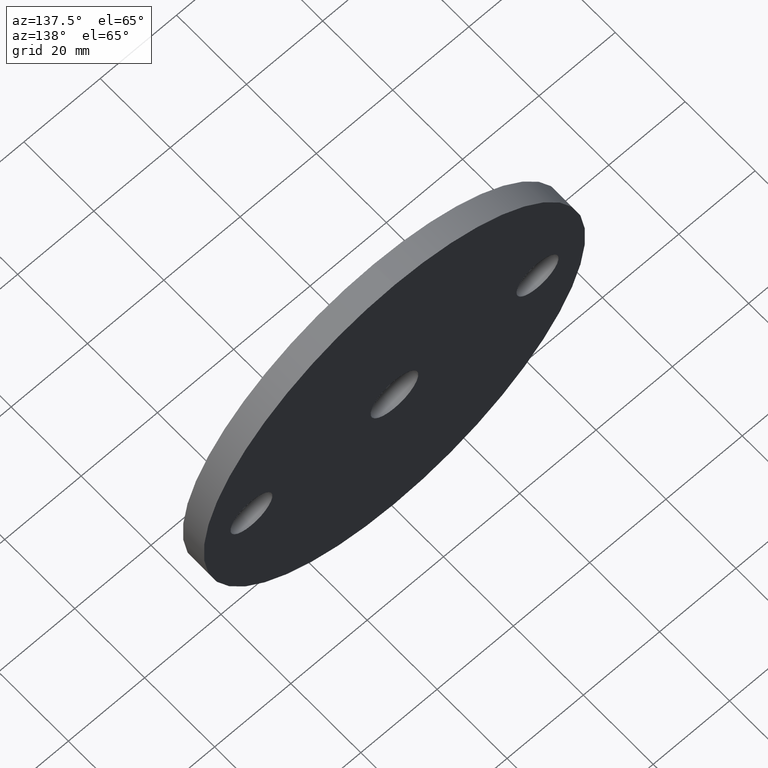
[diagram: clean part render]
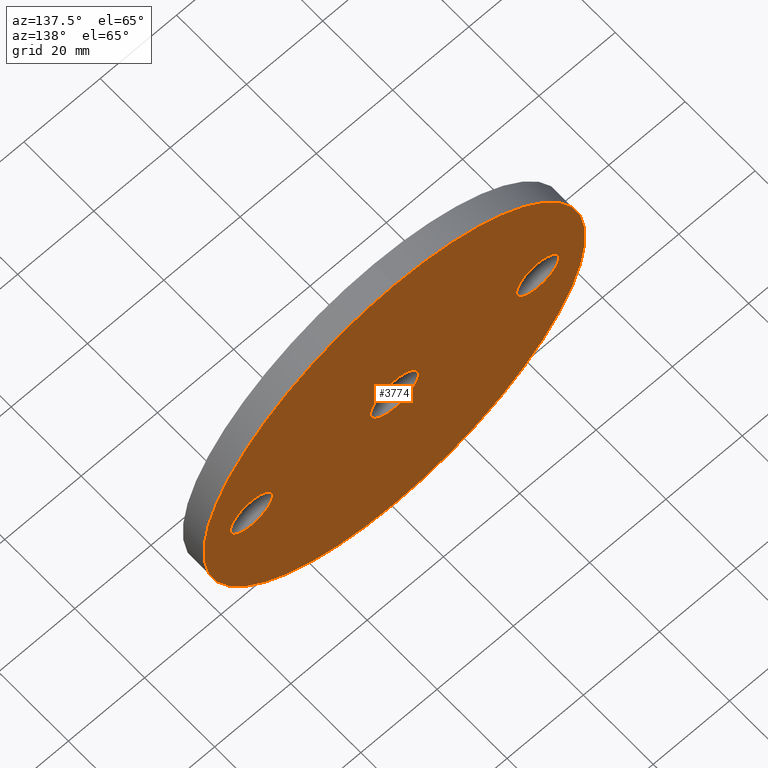
[diagram: same view with one face highlighted and labeled with its STEP entity id]
A machine part, auxiliary view. The second image highlights one B-rep face of the part: STEP entity #3774.
In plain terms, the highlighted planar face has unit normal (0, 1, 0).
Its self-contained STEP definition (entity closure, byte-faithful):
#176 = DIRECTION ( 'NONE',  ( 0.0000000000000000000, 0.0000000000000000000, 1.000000000000000000 ) ) ;
#208 = VERTEX_POINT ( 'NONE', #1717 ) ;
#419 = CARTESIAN_POINT ( 'NONE',  ( 0.0000000000000000000, 6.000000000000000000, 0.0000000000000000000 ) ) ;
#667 = AXIS2_PLACEMENT_3D ( 'NONE', #5362, #9909, #10661 ) ;
#1156 = CARTESIAN_POINT ( 'NONE',  ( -37.50000000000000000, 6.000000000000000000, 0.0000000000000000000 ) ) ;
#1271 = AXIS2_PLACEMENT_3D ( 'NONE', #1988, #10919, #6367 ) ;
#1403 = DIRECTION ( 'NONE',  ( 0.0000000000000000000, 1.000000000000000000, 0.0000000000000000000 ) ) ;
#1491 = DIRECTION ( 'NONE',  ( 0.0000000000000000000, 0.0000000000000000000, 1.000000000000000000 ) ) ;
#1552 = AXIS2_PLACEMENT_3D ( 'NONE', #6761, #1403, #6795 ) ;
#1701 = AXIS2_PLACEMENT_3D ( 'NONE', #419, #9299, #4006 ) ;
#1717 = CARTESIAN_POINT ( 'NONE',  ( 37.50000000000000000, 6.000000000000000000, 5.499999999999986700 ) ) ;
#1832 = CARTESIAN_POINT ( 'NONE',  ( 0.0000000000000000000, 6.000000000000000000, 0.0000000000000000000 ) ) ;
#1976 = CARTESIAN_POINT ( 'NONE',  ( 37.50000000000000000, 6.000000000000000000, -9.184850993605148700E-015 ) ) ;
#1988 = CARTESIAN_POINT ( 'NONE',  ( -37.50000000000000000, 6.000000000000000000, 0.0000000000000000000 ) ) ;
#2046 = DIRECTION ( 'NONE',  ( 0.0000000000000000000, 0.0000000000000000000, 1.000000000000000000 ) ) ;
#2276 = PLANE ( 'NONE',  #1701 ) ;
#2283 = FACE_BOUND ( 'NONE', #8852, .T. ) ;
#2552 = CIRCLE ( 'NONE', #1271, 5.499999999999996400 ) ;
#2638 = VERTEX_POINT ( 'NONE', #7796 ) ;
#2882 = ORIENTED_EDGE ( 'NONE', *, *, #6775, .F. ) ;
#3171 = DIRECTION ( 'NONE',  ( 0.0000000000000000000, 1.000000000000000000, 0.0000000000000000000 ) ) ;
#3245 = CARTESIAN_POINT ( 'NONE',  ( 0.0000000000000000000, 6.000000000000000000, 0.0000000000000000000 ) ) ;
#3412 = FACE_BOUND ( 'NONE', #9779, .T. ) ;
#3512 = DIRECTION ( 'NONE',  ( 0.0000000000000000000, 1.000000000000000000, 0.0000000000000000000 ) ) ;
#3520 = CIRCLE ( 'NONE', #667, 6.250000000000000000 ) ;
#3628 = VERTEX_POINT ( 'NONE', #11001 ) ;
#3774 = ADVANCED_FACE ( 'NONE', ( #3412, #7436, #2283, #11472 ), #2276, .T. ) ;
#3907 = EDGE_CURVE ( 'NONE', #208, #7978, #4784, .T. ) ;
#4006 = DIRECTION ( 'NONE',  ( 0.0000000000000000000, -0.0000000000000000000, 1.000000000000000000 ) ) ;
#4342 = AXIS2_PLACEMENT_3D ( 'NONE', #3245, #3171, #1491 ) ;
#4426 = EDGE_CURVE ( 'NONE', #3628, #8066, #6862, .T. ) ;
#4428 = DIRECTION ( 'NONE',  ( 0.0000000000000000000, 0.0000000000000000000, 1.000000000000000000 ) ) ;
#4515 = DIRECTION ( 'NONE',  ( 0.0000000000000000000, 0.0000000000000000000, 1.000000000000000000 ) ) ;
#4542 = AXIS2_PLACEMENT_3D ( 'NONE', #8778, #5263, #4428 ) ;
#4570 = EDGE_LOOP ( 'NONE', ( #8142, #5376 ) ) ;
#4725 = DIRECTION ( 'NONE',  ( 0.0000000000000000000, 1.000000000000000000, 0.0000000000000000000 ) ) ;
#4784 = CIRCLE ( 'NONE', #4542, 5.499999999999996400 ) ;
#5046 = EDGE_CURVE ( 'NONE', #8066, #3628, #6048, .T. ) ;
#5238 = VERTEX_POINT ( 'NONE', #7351 ) ;
#5263 = DIRECTION ( 'NONE',  ( 0.0000000000000000000, 1.000000000000000000, 0.0000000000000000000 ) ) ;
#5330 = ORIENTED_EDGE ( 'NONE', *, *, #10160, .F. ) ;
#5362 = CARTESIAN_POINT ( 'NONE',  ( 0.0000000000000000000, 6.000000000000000000, 0.0000000000000000000 ) ) ;
#5369 = CARTESIAN_POINT ( 'NONE',  ( 37.50000000000000000, 6.000000000000000000, -5.500000000000005300 ) ) ;
#5376 = ORIENTED_EDGE ( 'NONE', *, *, #4426, .T. ) ;
#5525 = VERTEX_POINT ( 'NONE', #8674 ) ;
#5546 = ORIENTED_EDGE ( 'NONE', *, *, #10141, .F. ) ;
#5654 = AXIS2_PLACEMENT_3D ( 'NONE', #1976, #10799, #176 ) ;
#5790 = ORIENTED_EDGE ( 'NONE', *, *, #3907, .F. ) ;
#6048 = CIRCLE ( 'NONE', #9054, 50.00000000000000000 ) ;
#6367 = DIRECTION ( 'NONE',  ( 0.0000000000000000000, 0.0000000000000000000, 1.000000000000000000 ) ) ;
#6684 = EDGE_CURVE ( 'NONE', #5525, #5238, #3520, .T. ) ;
#6761 = CARTESIAN_POINT ( 'NONE',  ( 0.0000000000000000000, 6.000000000000000000, 0.0000000000000000000 ) ) ;
#6775 = EDGE_CURVE ( 'NONE', #2638, #9582, #2552, .T. ) ;
#6795 = DIRECTION ( 'NONE',  ( 0.0000000000000000000, 0.0000000000000000000, 1.000000000000000000 ) ) ;
#6862 = CIRCLE ( 'NONE', #1552, 50.00000000000000000 ) ;
#7351 = CARTESIAN_POINT ( 'NONE',  ( 0.0000000000000000000, 6.000000000000000000, 6.250000000000000000 ) ) ;
#7430 = CARTESIAN_POINT ( 'NONE',  ( 0.0000000000000000000, 6.000000000000000000, -50.00000000000000000 ) ) ;
#7436 = FACE_BOUND ( 'NONE', #10392, .T. ) ;
#7796 = CARTESIAN_POINT ( 'NONE',  ( -37.50000000000000000, 6.000000000000000000, 5.499999999999996400 ) ) ;
#7917 = CIRCLE ( 'NONE', #5654, 5.499999999999996400 ) ;
#7978 = VERTEX_POINT ( 'NONE', #5369 ) ;
#8066 = VERTEX_POINT ( 'NONE', #7430 ) ;
#8142 = ORIENTED_EDGE ( 'NONE', *, *, #5046, .T. ) ;
#8591 = CIRCLE ( 'NONE', #4342, 6.250000000000000000 ) ;
#8674 = CARTESIAN_POINT ( 'NONE',  ( 7.654042494670957600E-016, 6.000000000000000000, -6.250000000000000000 ) ) ;
#8778 = CARTESIAN_POINT ( 'NONE',  ( 37.50000000000000000, 6.000000000000000000, -9.184850993605148700E-015 ) ) ;
#8852 = EDGE_LOOP ( 'NONE', ( #2882, #5330 ) ) ;
#9054 = AXIS2_PLACEMENT_3D ( 'NONE', #1832, #3512, #4515 ) ;
#9299 = DIRECTION ( 'NONE',  ( 0.0000000000000000000, 1.000000000000000000, 0.0000000000000000000 ) ) ;
#9582 = VERTEX_POINT ( 'NONE', #10867 ) ;
#9734 = CIRCLE ( 'NONE', #9840, 5.499999999999996400 ) ;
#9779 = EDGE_LOOP ( 'NONE', ( #9935, #10614 ) ) ;
#9840 = AXIS2_PLACEMENT_3D ( 'NONE', #1156, #4725, #2046 ) ;
#9909 = DIRECTION ( 'NONE',  ( 0.0000000000000000000, 1.000000000000000000, 0.0000000000000000000 ) ) ;
#9935 = ORIENTED_EDGE ( 'NONE', *, *, #10535, .F. ) ;
#10141 = EDGE_CURVE ( 'NONE', #7978, #208, #7917, .T. ) ;
#10160 = EDGE_CURVE ( 'NONE', #9582, #2638, #9734, .T. ) ;
#10392 = EDGE_LOOP ( 'NONE', ( #5790, #5546 ) ) ;
#10535 = EDGE_CURVE ( 'NONE', #5238, #5525, #8591, .T. ) ;
#10614 = ORIENTED_EDGE ( 'NONE', *, *, #6684, .F. ) ;
#10661 = DIRECTION ( 'NONE',  ( 0.0000000000000000000, 0.0000000000000000000, 1.000000000000000000 ) ) ;
#10799 = DIRECTION ( 'NONE',  ( 0.0000000000000000000, 1.000000000000000000, 0.0000000000000000000 ) ) ;
#10867 = CARTESIAN_POINT ( 'NONE',  ( -37.50000000000000000, 6.000000000000000000, -5.499999999999996400 ) ) ;
#10919 = DIRECTION ( 'NONE',  ( 0.0000000000000000000, 1.000000000000000000, 0.0000000000000000000 ) ) ;
#11001 = CARTESIAN_POINT ( 'NONE',  ( 6.123233995736766100E-015, 6.000000000000000000, 50.00000000000000000 ) ) ;
#11472 = FACE_OUTER_BOUND ( 'NONE', #4570, .T. ) ;